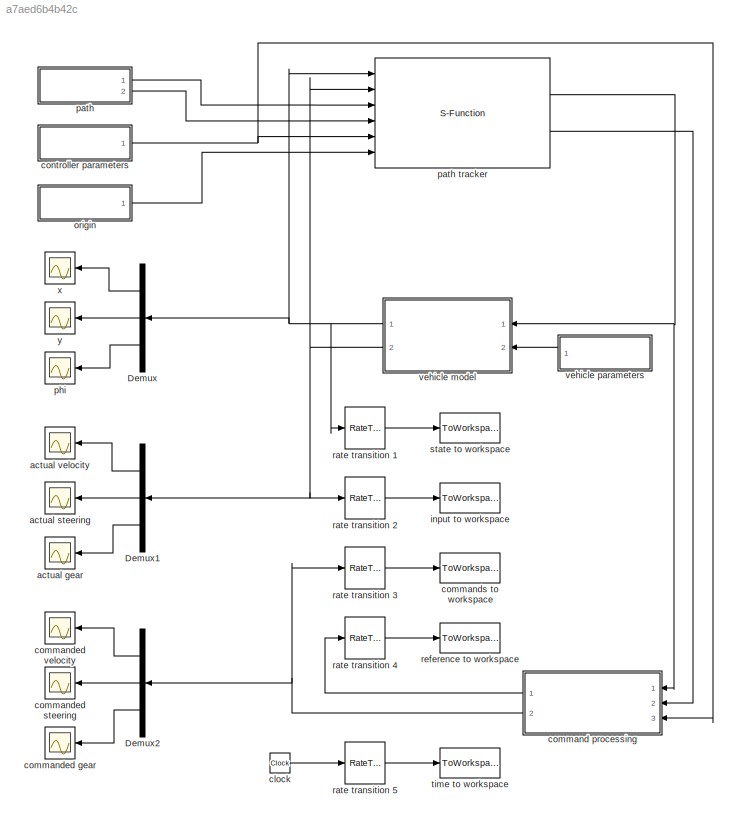
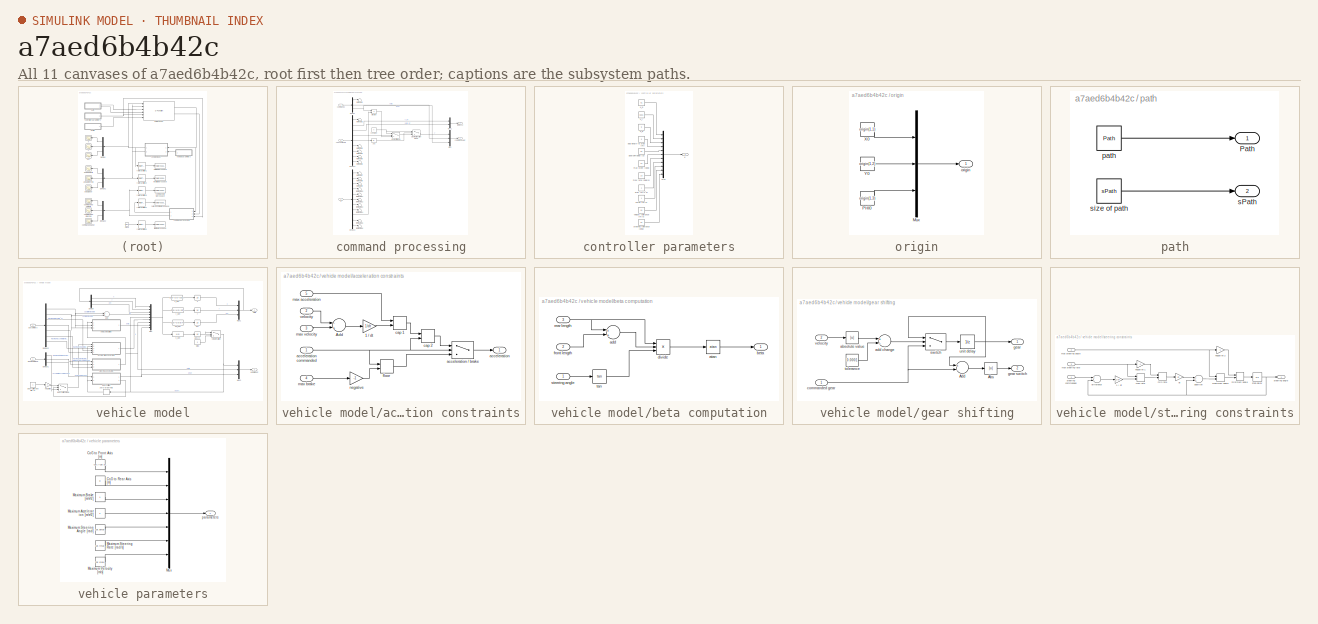
[diagram: thumbnail index - all 11 canvases of the model, root first then tree order]
MODEL slx_a7aed6b4b42c
KIND model
BLOCK [Demux] Demux
  DisplayOption = bar
  Outputs = 3
  Ports = [1, 3]
BLOCK [Demux] Demux1
  DisplayOption = bar
  Outputs = 3
  Ports = [1, 3]
BLOCK [Demux] Demux2
  DisplayOption = bar
  Outputs = 3
  Ports = [1, 3]
BLOCK [Scope] actual gear
  DataFormat = StructureWithTime
  Floating = off
  NumInputPorts = 1
  Ports = [1]
  SampleTime = 0
  SaveName = ScopeData3
  ShowLegends = off
BLOCK [Scope] actual steering
  DataFormat = StructureWithTime
  Floating = off
  NumInputPorts = 1
  Ports = [1]
  SampleTime = 0
  SaveName = ScopeData6
  ShowLegends = off
BLOCK [Scope] actual velocity
  DataFormat = StructureWithTime
  Floating = off
  NumInputPorts = 1
  Ports = [1]
  SampleTime = 0
  SaveName = ScopeData5
  ShowLegends = off
  ZoomMode = yonly
BLOCK [Clock] clock
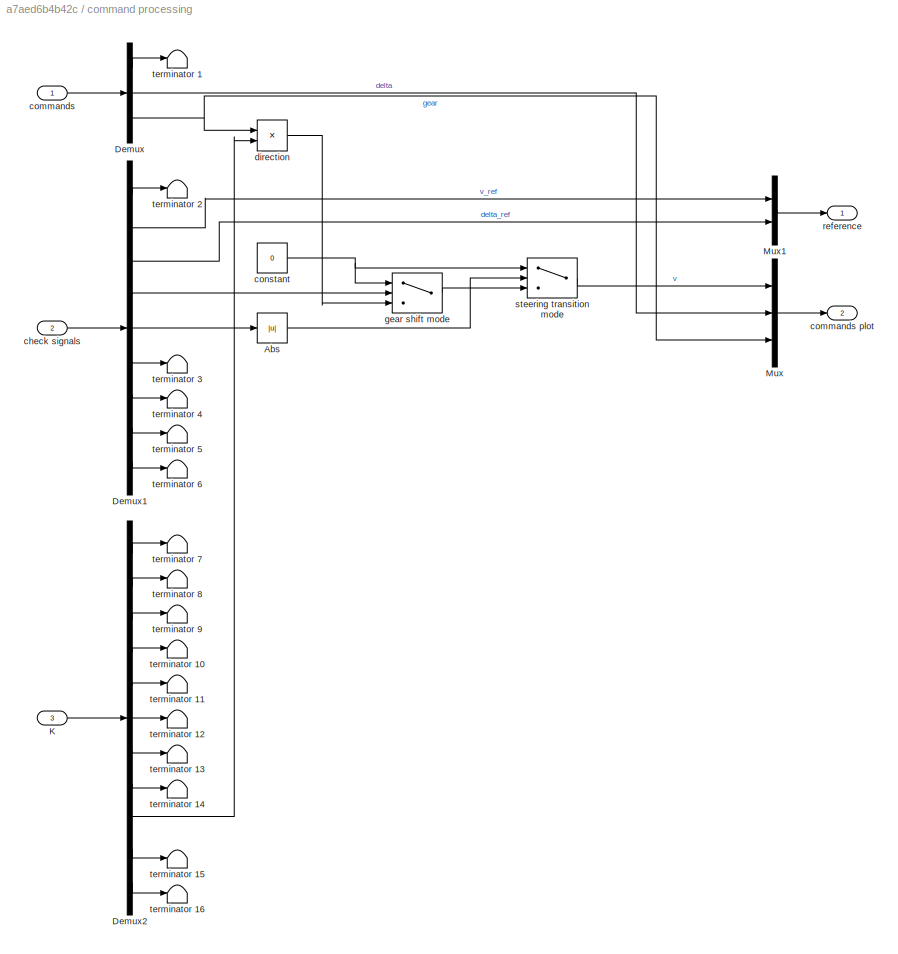
BLOCK [SubSystem] command processing
  Ports = [3, 2]
  RequestExecContextInheritance = off
BLOCK [Abs] command processing/Abs
  SaturateOnIntegerOverflow = off
BLOCK [Demux] command processing/Demux
  DisplayOption = bar
  Outputs = 3
  Ports = [1, 3]
BLOCK [Demux] command processing/Demux1
  DisplayOption = bar
  Outputs = 9
  Ports = [1, 9]
BLOCK [Demux] command processing/Demux2
  DisplayOption = bar
  Outputs = 11
  Ports = [1, 11]
BLOCK [Inport] command processing/K
  IconDisplay = Port number
  Port = 3
BLOCK [Mux] command processing/Mux
  DisplayOption = bar
  Inputs = 3
  Ports = [3, 1]
BLOCK [Mux] command processing/Mux1
  DisplayOption = bar
  Inputs = 2
  Ports = [2, 1]
BLOCK [Inport] command processing/check signals
  IconDisplay = Port number
  Port = 2
BLOCK [Inport] command processing/commands
  IconDisplay = Port number
BLOCK [Outport] command processing/commands plot
  IconDisplay = Port number
  Port = 2
BLOCK [Constant] command processing/constant
  Value = 0
BLOCK [Product] command processing/direction
  InputSameDT = off
  Inputs = **
  OutDataTypeStr = Inherit: Inherit via internal rule
  Ports = [2, 1]
  RndMeth = Floor
  SaturateOnIntegerOverflow = off
BLOCK [Switch] command processing/gear shift mode
  Criteria = u2 > Threshold
  InputSameDT = off
  SaturateOnIntegerOverflow = off
  Threshold = 0.5
BLOCK [Outport] command processing/reference
  IconDisplay = Port number
BLOCK [Switch] command processing/steering transition mode
  Criteria = u2 > Threshold
  InputSameDT = off
  SaturateOnIntegerOverflow = off
  Threshold = 0.5
BLOCK [Terminator] command processing/terminator 1
BLOCK [Terminator] command processing/terminator 10
BLOCK [Terminator] command processing/terminator 11
BLOCK [Terminator] command processing/terminator 12
BLOCK [Terminator] command processing/terminator 13
BLOCK [Terminator] command processing/terminator 14
BLOCK [Terminator] command processing/terminator 15
BLOCK [Terminator] command processing/terminator 16
BLOCK [Terminator] command processing/terminator 2
BLOCK [Terminator] command processing/terminator 3
BLOCK [Terminator] command processing/terminator 4
BLOCK [Terminator] command processing/terminator 5
BLOCK [Terminator] command processing/terminator 6
BLOCK [Terminator] command processing/terminator 7
BLOCK [Terminator] command processing/terminator 8
BLOCK [Terminator] command processing/terminator 9
BLOCK [Scope] commanded gear
  DataFormat = StructureWithTime
  Floating = off
  NumInputPorts = 1
  Ports = [1]
  SampleTime = 0
  SaveName = ScopeData4
  ShowLegends = off
BLOCK [Scope] commanded steering
  DataFormat = StructureWithTime
  Floating = off
  NumInputPorts = 1
  Ports = [1]
  SampleTime = 0
  SaveName = ScopeData8
  ShowLegends = off
  TimeRange = 1
  YMax = 1
  YMin = 0
BLOCK [Scope] commanded velocity
  DataFormat = StructureWithTime
  Floating = off
  NumInputPorts = 1
  Ports = [1]
  SampleTime = 0
  SaveName = ScopeData7
  ShowLegends = off
  ZoomMode = yonly
BLOCK [ToWorkspace] commands to workspace
  MaxDataPoints = inf
  Ports = [1]
  SampleTime = 0.1
  VariableName = C
BLOCK [SubSystem] controller parameters
  Ports = [0, 1]
  RequestExecContextInheritance = off
BLOCK [Outport] controller parameters/K
  IconDisplay = Port number
BLOCK [Constant] controller parameters/K_d
  Value = 5
BLOCK [Constant] controller parameters/K_i
  Value = 0.001
BLOCK [Constant] controller parameters/K_p
  Value = 0.1
BLOCK [Mux] controller parameters/Mux
  DisplayOption = bar
  Inputs = 11
  Ports = [11, 1]
BLOCK [Constant] controller parameters/add length to stop [m]
  Value = 0
BLOCK [Constant] controller parameters/aref [m//s^2]
BLOCK [Constant] controller parameters/gearshiftdelay [s]
  Value = 0.1
BLOCK [Constant] controller parameters/max rate [deg//s]
  Value = 10
BLOCK [Constant] controller parameters/max steer [deg]
  Value = 37
BLOCK [Constant] controller parameters/steering tolerance [deg]
  Value = 0.1
BLOCK [Constant] controller parameters/velocity tolerance [m//s]
  Value = 0.1
BLOCK [Constant] controller parameters/vmax [m//s]
BLOCK [ToWorkspace] input to workspace
  MaxDataPoints = inf
  Ports = [1]
  SampleTime = 0.1
  VariableName = U
BLOCK [SubSystem] origin
  Ports = [0, 1]
  RequestExecContextInheritance = off
BLOCK [Mux] origin/Mux
  DisplayOption = bar
  Inputs = 3
  Ports = [3, 1]
BLOCK [Constant] origin/PHI0
  Value = origin(1,3)
BLOCK [Constant] origin/X0
  Value = origin(1,1)
BLOCK [Constant] origin/Y0
  Value = origin(1,2)
BLOCK [Outport] origin/origin
  IconDisplay = Port number
BLOCK [SubSystem] path
  Ports = [0, 2]
  RequestExecContextInheritance = off
BLOCK [S-Function] path tracker
  EnableBusSupport = off
  FunctionName = pathtrack
  Ports = [6, 2]
BLOCK [Outport] path/Path
  IconDisplay = Port number
BLOCK [Constant] path/path
  Value = Path
BLOCK [Outport] path/sPath
  IconDisplay = Port number
  Port = 2
BLOCK [Constant] path/size of path
  Value = sPath
BLOCK [Scope] phi
  DataFormat = StructureWithTime
  Floating = off
  NumInputPorts = 1
  Ports = [1]
  SampleTime = 0
  SaveName = ScopeData2
  ShowLegends = off
BLOCK [RateTransition] rate transition 1
  OutPortSampleTime = 0.1
BLOCK [RateTransition] rate transition 2
  OutPortSampleTime = 0.1
BLOCK [RateTransition] rate transition 3
  OutPortSampleTime = 0.1
BLOCK [RateTransition] rate transition 4
  OutPortSampleTime = 0.1
BLOCK [RateTransition] rate transition 5
  OutPortSampleTime = 0.1
BLOCK [ToWorkspace] reference to workspace
  MaxDataPoints = inf
  Ports = [1]
  SampleTime = 0.1
  VariableName = R
BLOCK [ToWorkspace] state to workspace
  MaxDataPoints = inf
  Ports = [1]
  SampleTime = 0.1
  VariableName = X
BLOCK [ToWorkspace] time to workspace
  MaxDataPoints = inf
  Ports = [1]
  SampleTime = 0.1
  VariableName = T
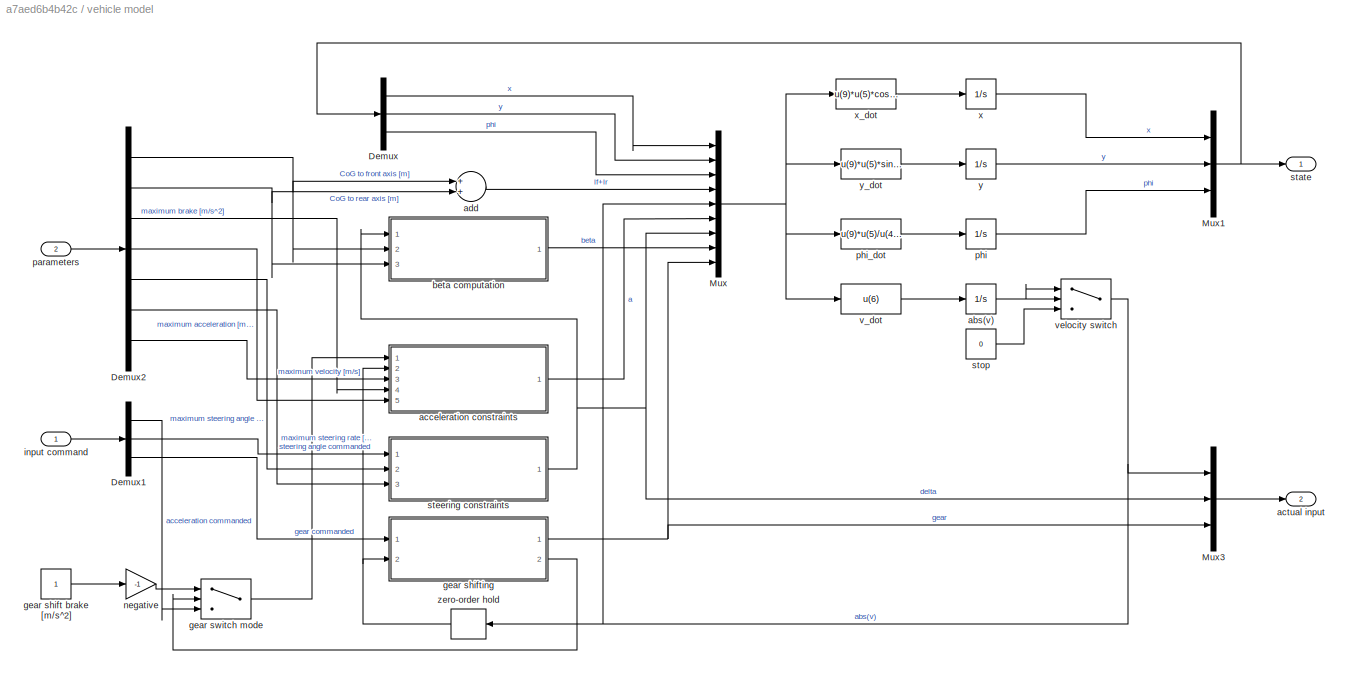
BLOCK [SubSystem] vehicle model
  Ports = [2, 2]
  RequestExecContextInheritance = off
BLOCK [Demux] vehicle model/Demux
  DisplayOption = bar
  Outputs = 3
  Ports = [1, 3]
BLOCK [Demux] vehicle model/Demux1
  DisplayOption = bar
  Outputs = 3
  Ports = [1, 3]
BLOCK [Demux] vehicle model/Demux2
  DisplayOption = bar
  Outputs = 7
  Ports = [1, 7]
BLOCK [Mux] vehicle model/Mux
  DisplayOption = bar
  Inputs = 9
  Ports = [9, 1]
BLOCK [Mux] vehicle model/Mux1
  DisplayOption = bar
  Inputs = 3
  Ports = [3, 1]
BLOCK [Mux] vehicle model/Mux3
  DisplayOption = bar
  Inputs = 3
  Ports = [3, 1]
BLOCK [Integrator] vehicle model/abs(v)
  InitialCondition = u0(1)
  LimitOutput = on
  LowerSaturationLimit = 0
  Ports = [1, 1]
  UpperSaturationLimit = 100
BLOCK [SubSystem] vehicle model/acceleration constraints
  Ports = [5, 1]
  RequestExecContextInheritance = off
BLOCK [Gain] vehicle model/acceleration constraints/1 // dt
  Gain = 1/dt
  OutDataTypeStr = Inherit: Inherit via internal rule
  ParamDataTypeStr = Inherit: Inherit via internal rule
  SaturateOnIntegerOverflow = off
BLOCK [Sum] vehicle model/acceleration constraints/Add
  InputSameDT = off
  Inputs = -+
  OutDataTypeStr = Inherit: Inherit via internal rule
  Ports = [2, 1]
  SaturateOnIntegerOverflow = off
BLOCK [Outport] vehicle model/acceleration constraints/acceleration
  IconDisplay = Port number
BLOCK [Switch] vehicle model/acceleration constraints/acceleration // brake
  Criteria = u2 > Threshold
  InputSameDT = off
  SaturateOnIntegerOverflow = off
BLOCK [Inport] vehicle model/acceleration constraints/acceleration commanded
  IconDisplay = Port number
BLOCK [MinMax] vehicle model/acceleration constraints/cap 1
  InputSameDT = off
  Inputs = 2
  Ports = [2, 1]
  SaturateOnIntegerOverflow = off
BLOCK [MinMax] vehicle model/acceleration constraints/cap 2
  InputSameDT = off
  Inputs = 2
  Ports = [2, 1]
  SaturateOnIntegerOverflow = off
BLOCK [MinMax] vehicle model/acceleration constraints/floor
  Function = max
  InputSameDT = off
  Inputs = 2
  Ports = [2, 1]
  SaturateOnIntegerOverflow = off
BLOCK [Inport] vehicle model/acceleration constraints/max acceleration
  IconDisplay = Port number
  Port = 5
BLOCK [Inport] vehicle model/acceleration constraints/max brake
  IconDisplay = Port number
  Port = 4
BLOCK [Inport] vehicle model/acceleration constraints/max velocity
  IconDisplay = Port number
  Port = 3
BLOCK [Gain] vehicle model/acceleration constraints/negative
  Gain = -1
  OutDataTypeStr = Inherit: Inherit via internal rule
  ParamDataTypeStr = Inherit: Inherit via internal rule
  SaturateOnIntegerOverflow = off
BLOCK [Inport] vehicle model/acceleration constraints/velocity
  IconDisplay = Port number
  Port = 2
BLOCK [Outport] vehicle model/actual input
  IconDisplay = Port number
  Port = 2
BLOCK [Sum] vehicle model/add
  InputSameDT = off
  OutDataTypeStr = Inherit: Inherit via internal rule
  Ports = [2, 1]
  SaturateOnIntegerOverflow = off
BLOCK [SubSystem] vehicle model/beta computation
  Ports = [3, 1]
  RequestExecContextInheritance = off
BLOCK [Sum] vehicle model/beta computation/add
  InputSameDT = off
  OutDataTypeStr = Inherit: Inherit via internal rule
  Ports = [2, 1]
  SaturateOnIntegerOverflow = off
BLOCK [Trigonometry] vehicle model/beta computation/atan
  Operator = atan
  Ports = [1, 1]
BLOCK [Outport] vehicle model/beta computation/beta
  IconDisplay = Port number
BLOCK [Product] vehicle model/beta computation/divide
  InputSameDT = off
  Inputs = */*
  OutDataTypeStr = Inherit: Inherit via internal rule
  Ports = [3, 1]
  RndMeth = Floor
  SaturateOnIntegerOverflow = off
BLOCK [Inport] vehicle model/beta computation/front length
  IconDisplay = Port number
  Port = 2
BLOCK [Inport] vehicle model/beta computation/rear length
  IconDisplay = Port number
  Port = 3
BLOCK [Inport] vehicle model/beta computation/steering angle
  IconDisplay = Port number
BLOCK [Trigonometry] vehicle model/beta computation/tan
  Operator = tan
  Ports = [1, 1]
BLOCK [Constant] vehicle model/gear shift brake [m//s^2]
BLOCK [SubSystem] vehicle model/gear shifting
  Ports = [2, 2]
  RequestExecContextInheritance = off
BLOCK [Abs] vehicle model/gear shifting/Abs
  SaturateOnIntegerOverflow = off
BLOCK [Sum] vehicle model/gear shifting/Add
  InputSameDT = off
  Inputs = +-
  OutDataTypeStr = Inherit: Inherit via internal rule
  Ports = [2, 1]
  SaturateOnIntegerOverflow = off
BLOCK [Abs] vehicle model/gear shifting/absolute value
  SaturateOnIntegerOverflow = off
BLOCK [Sum] vehicle model/gear shifting/add change
  InputSameDT = off
  Inputs = +-
  OutDataTypeStr = Inherit: Inherit via internal rule
  Ports = [2, 1]
  SaturateOnIntegerOverflow = off
BLOCK [Inport] vehicle model/gear shifting/commanded gear
  IconDisplay = Port number
BLOCK [Outport] vehicle model/gear shifting/gear
  IconDisplay = Port number
BLOCK [Outport] vehicle model/gear shifting/gear switch
  IconDisplay = Port number
  Port = 2
BLOCK [Switch] vehicle model/gear shifting/switch
  InputSameDT = off
  SaturateOnIntegerOverflow = off
BLOCK [Constant] vehicle model/gear shifting/tolerance
  Value = 0.0001
BLOCK [UnitDelay] vehicle model/gear shifting/unit delay
  InitialCondition = u0(3)
  InputProcessing = Elements as channels (sample based)
  SampleTime = -1
BLOCK [Inport] vehicle model/gear shifting/velocity
  IconDisplay = Port number
  Port = 2
BLOCK [Switch] vehicle model/gear switch mode
  Criteria = u2 > Threshold
  InputSameDT = off
  SaturateOnIntegerOverflow = off
  Threshold = 1e-8
BLOCK [Inport] vehicle model/input command
  IconDisplay = Port number
BLOCK [Gain] vehicle model/negative
  Gain = -1
  OutDataTypeStr = Inherit: Inherit via internal rule
  ParamDataTypeStr = Inherit: Inherit via internal rule
  SaturateOnIntegerOverflow = off
BLOCK [Inport] vehicle model/parameters
  IconDisplay = Port number
  Port = 2
BLOCK [Integrator] vehicle model/phi
  InitialCondition = x0(3)
  Ports = [1, 1]
BLOCK [Fcn] vehicle model/phi_dot
  Expr = u(9)*u(5)/u(4)*cos(u(8))*tan(u(7))
BLOCK [Outport] vehicle model/state
  IconDisplay = Port number
BLOCK [SubSystem] vehicle model/steering constraints
  Ports = [3, 1]
  RequestExecContextInheritance = off
BLOCK [Gain] vehicle model/steering constraints/ negative 2
  Gain = -1
  OutDataTypeStr = Inherit: Inherit via internal rule
  ParamDataTypeStr = Inherit: Inherit via internal rule
  SaturateOnIntegerOverflow = off
BLOCK [Gain] vehicle model/steering constraints/1 // dt
  Gain = 1/dt
  OutDataTypeStr = Inherit: Inherit via internal rule
  ParamDataTypeStr = Inherit: Inherit via internal rule
  SaturateOnIntegerOverflow = off
BLOCK [Sum] vehicle model/steering constraints/addition
  InputSameDT = off
  OutDataTypeStr = Inherit: Inherit via internal rule
  Ports = [2, 1]
  SaturateOnIntegerOverflow = off
BLOCK [Sum] vehicle model/steering constraints/difference
  InputSameDT = off
  Inputs = +-
  OutDataTypeStr = Inherit: Inherit via internal rule
  Ports = [2, 1]
  SaturateOnIntegerOverflow = off
BLOCK [Gain] vehicle model/steering constraints/dt
  Gain = dt
  OutDataTypeStr = Inherit: Inherit via internal rule
  ParamDataTypeStr = Inherit: Inherit via internal rule
  SaturateOnIntegerOverflow = off
BLOCK [MinMax] vehicle model/steering constraints/max rate
  InputSameDT = off
  Inputs = 2
  Ports = [2, 1]
  SaturateOnIntegerOverflow = off
BLOCK [Inport] vehicle model/steering constraints/max steering angle
  IconDisplay = Port number
  Port = 2
BLOCK [Inport] vehicle model/steering constraints/max steering rate
  IconDisplay = Port number
  Port = 3
BLOCK [MinMax] vehicle model/steering constraints/maximum angle
  InputSameDT = off
  Inputs = 2
  Ports = [2, 1]
  SaturateOnIntegerOverflow = off
BLOCK [MinMax] vehicle model/steering constraints/min rate
  Function = max
  InputSameDT = off
  Inputs = 2
  Ports = [2, 1]
  SaturateOnIntegerOverflow = off
BLOCK [MinMax] vehicle model/steering constraints/minimum angle
  Function = max
  InputSameDT = off
  Inputs = 2
  Ports = [2, 1]
  SaturateOnIntegerOverflow = off
BLOCK [Gain] vehicle model/steering constraints/negative 1
  Gain = -1
  OutDataTypeStr = Inherit: Inherit via internal rule
  ParamDataTypeStr = Inherit: Inherit via internal rule
  SaturateOnIntegerOverflow = off
BLOCK [Outport] vehicle model/steering constraints/steering angle
  IconDisplay = Port number
BLOCK [Inport] vehicle model/steering constraints/steering commanded
  IconDisplay = Port number
BLOCK [UnitDelay] vehicle model/steering constraints/step delay
  InitialCondition = u0(2)
  InputProcessing = Elements as channels (sample based)
  SampleTime = -1
BLOCK [Constant] vehicle model/stop
  Value = 0
BLOCK [Fcn] vehicle model/v_dot
  Expr = u(6)
BLOCK [Switch] vehicle model/velocity switch
  Criteria = u2 > Threshold
  InputSameDT = off
  SaturateOnIntegerOverflow = off
BLOCK [Integrator] vehicle model/x
  InitialCondition = x0(1)
  Ports = [1, 1]
BLOCK [Fcn] vehicle model/x_dot
  Expr = u(9)*u(5)*cos(u(3)+u(8))
BLOCK [Integrator] vehicle model/y
  InitialCondition = x0(2)
  Ports = [1, 1]
BLOCK [Fcn] vehicle model/y_dot
  Expr = u(9)*u(5)*sin(u(3)+u(8))
BLOCK [ZeroOrderHold] vehicle model/zero-order hold
  SampleTime = dt
BLOCK [SubSystem] vehicle parameters
  Ports = [0, 1]
  RequestExecContextInheritance = off
BLOCK [Constant] vehicle parameters/CoG to Front Axis [m]
  Value = car.l-car.db-car.df
BLOCK [Constant] vehicle parameters/CoG to Rear Axis [m]
  Value = 0
BLOCK [Constant] vehicle parameters/Maximum Acceleration [m//s^2]
BLOCK [Constant] vehicle parameters/Maximum Brake [m//s^2]
BLOCK [Constant] vehicle parameters/Maximum Steering Angle [rad]
  Value = car.dmax
BLOCK [Constant] vehicle parameters/Maximum Steering Rate [rad//s]
  Value = car.rmax
BLOCK [Constant] vehicle parameters/Maximum Velocity [m//s]
  Value = car.vidle
BLOCK [Mux] vehicle parameters/Mux
  DisplayOption = bar
  Inputs = 7
  Ports = [7, 1]
BLOCK [Outport] vehicle parameters/parameters
  IconDisplay = Port number
BLOCK [Scope] x
  DataFormat = StructureWithTime
  Floating = off
  NumInputPorts = 1
  Ports = [1]
  SampleTime = 0
  ShowLegends = off
BLOCK [Scope] y
  DataFormat = StructureWithTime
  Floating = off
  NumInputPorts = 1
  Ports = [1]
  SampleTime = 0
  SaveName = ScopeData1
  ShowLegends = off
LINE Demux1:1 -> actual velocity:1
LINE Demux1:2 -> actual steering:1
LINE Demux1:3 -> actual gear:1
LINE Demux2:1 -> commanded velocity:1
LINE Demux2:2 -> commanded steering:1
LINE Demux2:3 -> commanded gear:1
LINE Demux:1 -> x:1
LINE Demux:2 -> y:1
LINE Demux:3 -> phi:1
LINE clock:1 -> rate transition 5:1
LINE command processing/Abs:1 -> command processing/steering transition mode:2
LINE command processing/Demux1:1 -> command processing/terminator 2:1
LINE command processing/Demux1:2 -> command processing/Mux1:1
LINE command processing/Demux1:3 -> command processing/Mux1:2
LINE command processing/Demux1:4 -> command processing/gear shift mode:2
LINE command processing/Demux1:5 -> command processing/Abs:1
LINE command processing/Demux1:6 -> command processing/terminator 3:1
LINE command processing/Demux1:7 -> command processing/terminator 4:1
LINE command processing/Demux1:8 -> command processing/terminator 5:1
LINE command processing/Demux1:9 -> command processing/terminator 6:1
LINE command processing/Demux2:1 -> command processing/terminator 7:1
LINE command processing/Demux2:10 -> command processing/terminator 15:1
LINE command processing/Demux2:11 -> command processing/terminator 16:1
LINE command processing/Demux2:2 -> command processing/terminator 8:1
LINE command processing/Demux2:3 -> command processing/terminator 9:1
LINE command processing/Demux2:4 -> command processing/terminator 10:1
LINE command processing/Demux2:5 -> command processing/terminator 11:1
LINE command processing/Demux2:6 -> command processing/terminator 12:1
LINE command processing/Demux2:7 -> command processing/terminator 13:1
LINE command processing/Demux2:8 -> command processing/terminator 14:1
LINE command processing/Demux2:9 -> command processing/direction:2
LINE command processing/Demux:1 -> command processing/terminator 1:1
LINE command processing/Demux:2 -> command processing/Mux:2
NET command processing/Demux:3 -> command processing/Mux:3, command processing/direction:1
LINE command processing/K:1 -> command processing/Demux2:1
LINE command processing/Mux1:1 -> command processing/reference:1
LINE command processing/Mux:1 -> command processing/commands plot:1
LINE command processing/check signals:1 -> command processing/Demux1:1
LINE command processing/commands:1 -> command processing/Demux:1
NET command processing/constant:1 -> command processing/gear shift mode:1, command processing/steering transition mode:1
LINE command processing/direction:1 -> command processing/gear shift mode:3
LINE command processing/gear shift mode:1 -> command processing/steering transition mode:3
LINE command processing/steering transition mode:1 -> command processing/Mux:1
LINE command processing:1 -> rate transition 4:1
NET command processing:2 -> Demux2:1, rate transition 3:1
LINE controller parameters/K_d:1 -> controller parameters/Mux:3
LINE controller parameters/K_i:1 -> controller parameters/Mux:2
LINE controller parameters/K_p:1 -> controller parameters/Mux:1
LINE controller parameters/Mux:1 -> controller parameters/K:1
LINE controller parameters/add length to stop [m]:1 -> controller parameters/Mux:4
LINE controller parameters/aref [m//s^2]:1 -> controller parameters/Mux:8
LINE controller parameters/gearshiftdelay [s]:1 -> controller parameters/Mux:5
LINE controller parameters/max rate [deg//s]:1 -> controller parameters/Mux:7
LINE controller parameters/max steer [deg]:1 -> controller parameters/Mux:6
LINE controller parameters/steering tolerance [deg]:1 -> controller parameters/Mux:11
LINE controller parameters/velocity tolerance [m//s]:1 -> controller parameters/Mux:10
LINE controller parameters/vmax [m//s]:1 -> controller parameters/Mux:9
NET controller parameters:1 -> command processing:3, path tracker:5
LINE origin/Mux:1 -> origin/origin:1
LINE origin/PHI0:1 -> origin/Mux:3
LINE origin/X0:1 -> origin/Mux:1
LINE origin/Y0:1 -> origin/Mux:2
LINE origin:1 -> path tracker:6
NET path tracker:1 -> command processing:1, vehicle model:1
LINE path tracker:2 -> command processing:2
LINE path/path:1 -> path/Path:1
LINE path/size of path:1 -> path/sPath:1
LINE path:1 -> path tracker:3
LINE path:2 -> path tracker:4
LINE rate transition 1:1 -> state to workspace:1
LINE rate transition 2:1 -> input to workspace:1
LINE rate transition 3:1 -> commands to workspace:1
LINE rate transition 4:1 -> reference to workspace:1
LINE rate transition 5:1 -> time to workspace:1
LINE vehicle model/Demux1:1 -> vehicle model/gear switch mode:3
LINE vehicle model/Demux1:2 -> vehicle model/steering constraints:1
LINE vehicle model/Demux1:3 -> vehicle model/gear shifting:1
NET vehicle model/Demux2:1 -> vehicle model/add:1, vehicle model/beta computation:2
NET vehicle model/Demux2:2 -> vehicle model/add:2, vehicle model/beta computation:3
LINE vehicle model/Demux2:3 -> vehicle model/acceleration constraints:4
LINE vehicle model/Demux2:4 -> vehicle model/acceleration constraints:5
LINE vehicle model/Demux2:5 -> vehicle model/steering constraints:2
LINE vehicle model/Demux2:6 -> vehicle model/steering constraints:3
LINE vehicle model/Demux2:7 -> vehicle model/acceleration constraints:3
LINE vehicle model/Demux:1 -> vehicle model/Mux:1
LINE vehicle model/Demux:2 -> vehicle model/Mux:2
LINE vehicle model/Demux:3 -> vehicle model/Mux:3
NET vehicle model/Mux1:1 -> vehicle model/Demux:1, vehicle model/state:1
LINE vehicle model/Mux3:1 -> vehicle model/actual input:1
NET vehicle model/Mux:1 -> vehicle model/phi_dot:1, vehicle model/v_dot:1, vehicle model/x_dot:1, vehicle model/y_dot:1
NET vehicle model/abs(v):1 -> vehicle model/velocity switch:1, vehicle model/velocity switch:2
LINE vehicle model/acceleration constraints/1 // dt:1 -> vehicle model/acceleration constraints/cap 1:2
LINE vehicle model/acceleration constraints/Add:1 -> vehicle model/acceleration constraints/1 // dt:1
LINE vehicle model/acceleration constraints/acceleration // brake:1 -> vehicle model/acceleration constraints/acceleration:1
NET vehicle model/acceleration constraints/acceleration commanded:1 -> vehicle model/acceleration constraints/acceleration // brake:2, vehicle model/acceleration constraints/cap 2:2, vehicle model/acceleration constraints/floor:1
LINE vehicle model/acceleration constraints/cap 1:1 -> vehicle model/acceleration constraints/cap 2:1
LINE vehicle model/acceleration constraints/cap 2:1 -> vehicle model/acceleration constraints/acceleration // brake:1
LINE vehicle model/acceleration constraints/floor:1 -> vehicle model/acceleration constraints/acceleration // brake:3
LINE vehicle model/acceleration constraints/max acceleration:1 -> vehicle model/acceleration constraints/cap 1:1
LINE vehicle model/acceleration constraints/max brake:1 -> vehicle model/acceleration constraints/negative:1
LINE vehicle model/acceleration constraints/max velocity:1 -> vehicle model/acceleration constraints/Add:2
LINE vehicle model/acceleration constraints/negative:1 -> vehicle model/acceleration constraints/floor:2
LINE vehicle model/acceleration constraints/velocity:1 -> vehicle model/acceleration constraints/Add:1
LINE vehicle model/acceleration constraints:1 -> vehicle model/Mux:6
LINE vehicle model/add:1 -> vehicle model/Mux:4
LINE vehicle model/beta computation/add:1 -> vehicle model/beta computation/divide:2
LINE vehicle model/beta computation/atan:1 -> vehicle model/beta computation/beta:1
LINE vehicle model/beta computation/divide:1 -> vehicle model/beta computation/atan:1
LINE vehicle model/beta computation/front length:1 -> vehicle model/beta computation/add:2
NET vehicle model/beta computation/rear length:1 -> vehicle model/beta computation/add:1, vehicle model/beta computation/divide:1
LINE vehicle model/beta computation/steering angle:1 -> vehicle model/beta computation/tan:1
LINE vehicle model/beta computation/tan:1 -> vehicle model/beta computation/divide:3
LINE vehicle model/beta computation:1 -> vehicle model/Mux:8
LINE vehicle model/gear shift brake [m//s^2]:1 -> vehicle model/negative:1
LINE vehicle model/gear shifting/Abs:1 -> vehicle model/gear shifting/gear switch:1
LINE vehicle model/gear shifting/Add:1 -> vehicle model/gear shifting/Abs:1
LINE vehicle model/gear shifting/absolute value:1 -> vehicle model/gear shifting/add change:1
LINE vehicle model/gear shifting/add change:1 -> vehicle model/gear shifting/switch:2
NET vehicle model/gear shifting/commanded gear:1 -> vehicle model/gear shifting/Add:2, vehicle model/gear shifting/switch:3
LINE vehicle model/gear shifting/switch:1 -> vehicle model/gear shifting/unit delay:1
LINE vehicle model/gear shifting/tolerance:1 -> vehicle model/gear shifting/add change:2
NET vehicle model/gear shifting/unit delay:1 -> vehicle model/gear shifting/Add:1, vehicle model/gear shifting/gear:1, vehicle model/gear shifting/switch:1
LINE vehicle model/gear shifting/velocity:1 -> vehicle model/gear shifting/absolute value:1
NET vehicle model/gear shifting:1 -> vehicle model/Mux3:3, vehicle model/Mux:9
LINE vehicle model/gear shifting:2 -> vehicle model/gear switch mode:2
LINE vehicle model/gear switch mode:1 -> vehicle model/acceleration constraints:1
LINE vehicle model/input command:1 -> vehicle model/Demux1:1
LINE vehicle model/negative:1 -> vehicle model/gear switch mode:1
LINE vehicle model/parameters:1 -> vehicle model/Demux2:1
LINE vehicle model/phi:1 -> vehicle model/Mux1:3
LINE vehicle model/phi_dot:1 -> vehicle model/phi:1
LINE vehicle model/steering constraints/ negative 2:1 -> vehicle model/steering constraints/minimum angle:1
LINE vehicle model/steering constraints/1 // dt:1 -> vehicle model/steering constraints/max rate:2
LINE vehicle model/steering constraints/addition:1 -> vehicle model/steering constraints/maximum angle:2
LINE vehicle model/steering constraints/difference:1 -> vehicle model/steering constraints/1 // dt:1
LINE vehicle model/steering constraints/dt:1 -> vehicle model/steering constraints/addition:1
LINE vehicle model/steering constraints/max rate:1 -> vehicle model/steering constraints/min rate:2
NET vehicle model/steering constraints/max steering angle:1 -> vehicle model/steering constraints/ negative 2:1, vehicle model/steering constraints/maximum angle:1
NET vehicle model/steering constraints/max steering rate:1 -> vehicle model/steering constraints/max rate:1, vehicle model/steering constraints/negative 1:1
LINE vehicle model/steering constraints/maximum angle:1 -> vehicle model/steering constraints/minimum angle:2
LINE vehicle model/steering constraints/min rate:1 -> vehicle model/steering constraints/dt:1
LINE vehicle model/steering constraints/minimum angle:1 -> vehicle model/steering constraints/step delay:1
LINE vehicle model/steering constraints/negative 1:1 -> vehicle model/steering constraints/min rate:1
LINE vehicle model/steering constraints/steering commanded:1 -> vehicle model/steering constraints/difference:1
NET vehicle model/steering constraints/step delay:1 -> vehicle model/steering constraints/addition:2, vehicle model/steering constraints/difference:2, vehicle model/steering constraints/steering angle:1
NET vehicle model/steering constraints:1 -> vehicle model/Mux3:2, vehicle model/Mux:7, vehicle model/beta computation:1
LINE vehicle model/stop:1 -> vehicle model/velocity switch:3
LINE vehicle model/v_dot:1 -> vehicle model/abs(v):1
NET vehicle model/velocity switch:1 -> vehicle model/Mux3:1, vehicle model/Mux:5, vehicle model/zero-order hold:1
LINE vehicle model/x:1 -> vehicle model/Mux1:1
LINE vehicle model/x_dot:1 -> vehicle model/x:1
LINE vehicle model/y:1 -> vehicle model/Mux1:2
LINE vehicle model/y_dot:1 -> vehicle model/y:1
NET vehicle model/zero-order hold:1 -> vehicle model/acceleration constraints:2, vehicle model/gear shifting:2
NET vehicle model:1 -> Demux:1, path tracker:1, rate transition 1:1
NET vehicle model:2 -> Demux1:1, path tracker:2, rate transition 2:1
LINE vehicle parameters/CoG to Front Axis [m]:1 -> vehicle parameters/Mux:1
LINE vehicle parameters/CoG to Rear Axis [m]:1 -> vehicle parameters/Mux:2
LINE vehicle parameters/Maximum Acceleration [m//s^2]:1 -> vehicle parameters/Mux:4
LINE vehicle parameters/Maximum Brake [m//s^2]:1 -> vehicle parameters/Mux:3
LINE vehicle parameters/Maximum Steering Angle [rad]:1 -> vehicle parameters/Mux:5
LINE vehicle parameters/Maximum Steering Rate [rad//s]:1 -> vehicle parameters/Mux:6
LINE vehicle parameters/Maximum Velocity [m//s]:1 -> vehicle parameters/Mux:7
LINE vehicle parameters/Mux:1 -> vehicle parameters/parameters:1
LINE vehicle parameters:1 -> vehicle model:2
note: NET lines group one-source signal fan-out (src -> all destinations, sorted); 1:1 wires keep LINE
